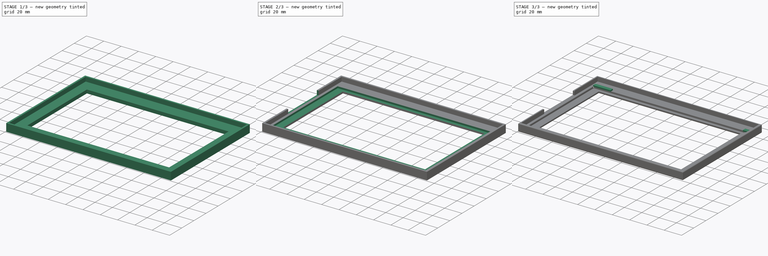
[diagram: build sequence overview — one tinted view per stage of 3, left to right]
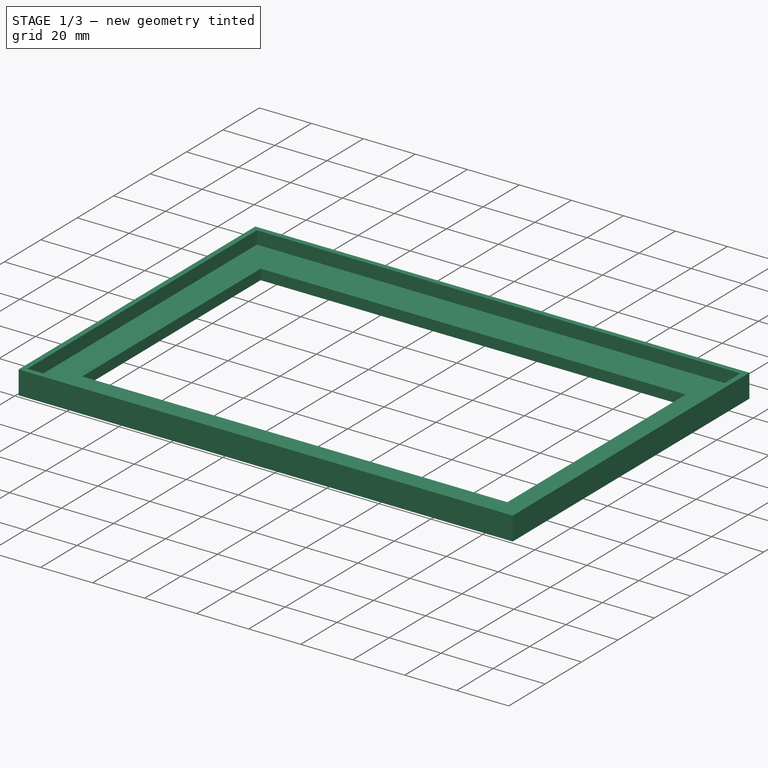
[diagram: stage 1 of 3 — iso view after this stage's code; geometry added in this stage tinted green]
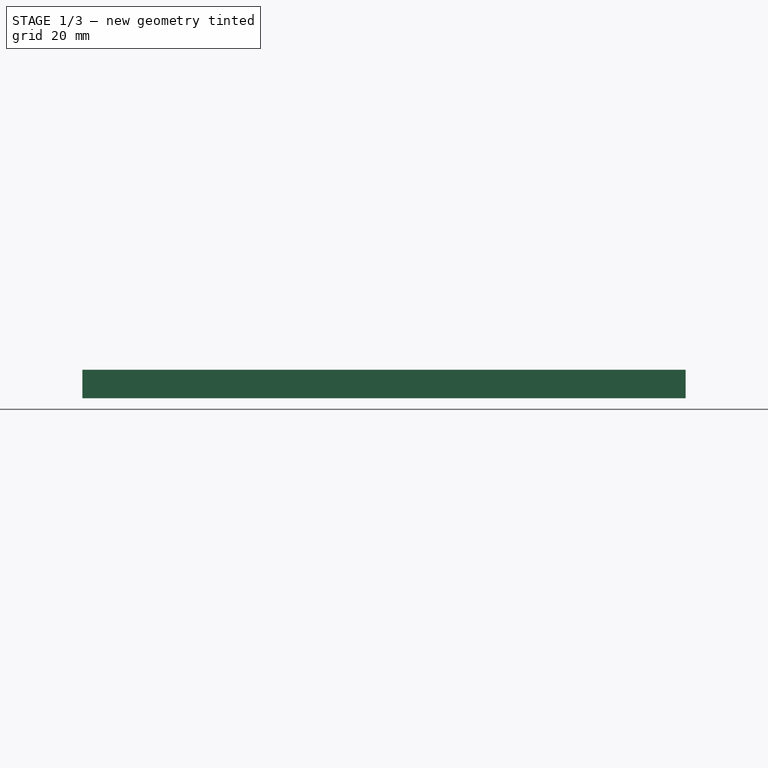
[diagram: stage 1 of 3 — front view after this stage's code; geometry added in this stage tinted green]
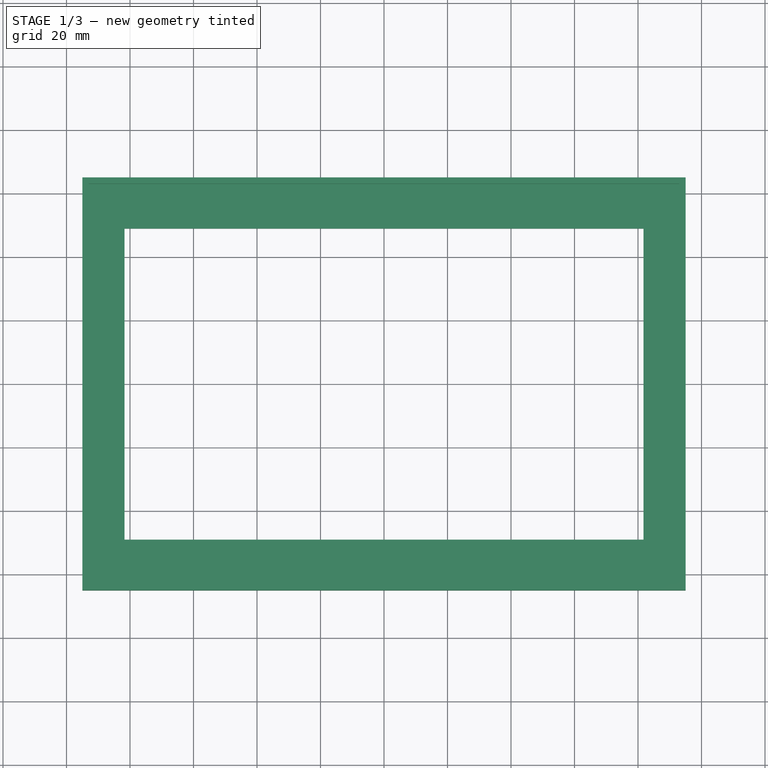
[diagram: stage 1 of 3 — top view after this stage's code; geometry added in this stage tinted green]
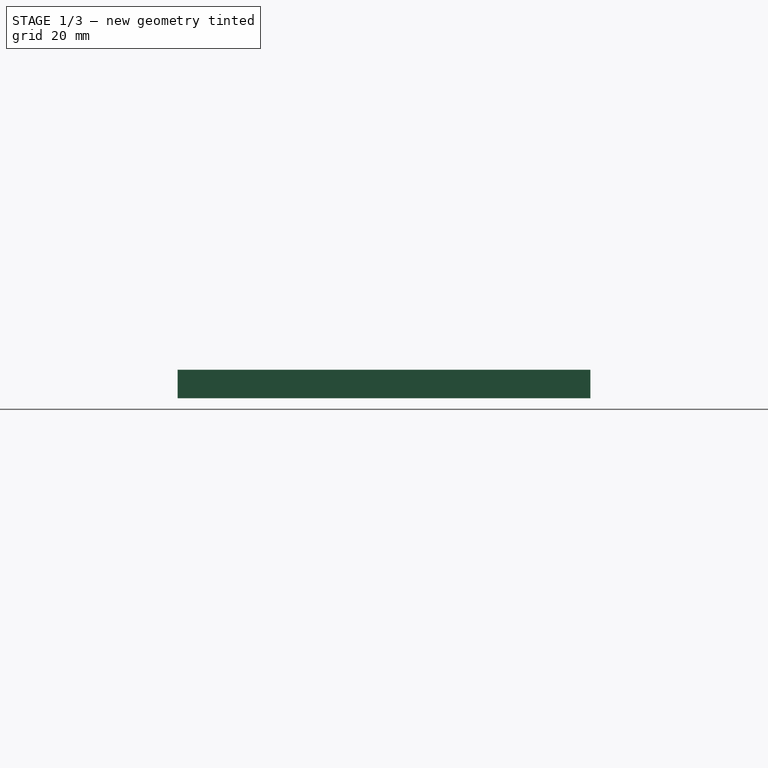
[diagram: stage 1 of 3 — right view after this stage's code; geometry added in this stage tinted green]
FCSTD DOCUMENT  (FreeCAD 1.0R39109 (Git))
Label: RevK75Bezel
License: All rights reserved
LicenseURL: https://en.wikipedia.org/wiki/All_rights_reserved
objects: Sketcher::SketchObject×5, PartDesign::Pad×3, PartDesign::Pocket×2, PartDesign::Plane×1, PartDesign::Fillet×1, PartDesign::Body×1
note: 30 computed .brp shape members not serialized (recipe doc carries the construction recipe); baked Part::Feature solids carry a one-line shape summary decoded from their .brp

FEATURE [PartDesign::Plane] DatumPlane
  AttachmentSupport = -> [XY_Plane]
  Length = 221.432
  MapMode = 5
  ResizeMode = 0
  Width = 161.432
FEATURE [Sketcher::SketchObject] Sketch  label="FrameBaseS"
  ArcFitTolerance = 0
  AttachmentOffset = pos=(0,0,-2) rot=(0,0,1;0rad)
  AttachmentSupport = -> [DatumPlane]
  FullyConstrained = true
  MakeInternals = false
  MapMode = 5
  Placement = pos=(0,0,-2) rot=(0,0,1;0rad)
  sketch-geometry (10):
    g0: LineSegment StartX=-95 StartY=-65 StartZ=0 EndX=-95 EndY=65 EndZ=0
    g1: LineSegment StartX=-95 StartY=65 StartZ=0 EndX=95 EndY=65 EndZ=0
    g2: LineSegment StartX=95 StartY=65 StartZ=0 EndX=95 EndY=-65 EndZ=0
    g3: LineSegment StartX=95 StartY=-65 StartZ=0 EndX=-95 EndY=-65 EndZ=0
    g4: GeomPoint [constr] X=0 Y=0 Z=0
    g5: LineSegment StartX=-81.75 StartY=-49 StartZ=0 EndX=-81.75 EndY=49 EndZ=0
    g6: LineSegment StartX=-81.75 StartY=49 StartZ=0 EndX=81.75 EndY=49 EndZ=0
    g7: LineSegment StartX=81.75 StartY=49 StartZ=0 EndX=81.75 EndY=-49 EndZ=0
    g8: LineSegment StartX=81.75 StartY=-49 StartZ=0 EndX=-81.75 EndY=-49 EndZ=0
    g9: GeomPoint [constr] X=0 Y=0 Z=0
  constraints (24):
    c: Coincident(g0,g1)
    c: Coincident(g1,g2)
    c: Coincident(g2,g3)
    c: Coincident(g3,g0)
    c: Horizontal(g1)
    c: Horizontal(g3)
    c: Vertical(g0)
    c: Vertical(g2)
    c: Symmetric(g1,g0,g4)
    c: Coincident(g4,g-1)
    c: DistanceY(g0,g0) = 130  'Frame Height'
    c: DistanceX(g1,g1) = 190  'Frame Width'
    c: Coincident(g5,g6)
    c: Coincident(g6,g7)
    c: Coincident(g7,g8)
    c: Coincident(g8,g5)
    c: Horizontal(g6)
    c: Horizontal(g8)
    c: Vertical(g5)
    c: Vertical(g7)
    c: Symmetric(g6,g5,g9)
    c: Coincident(g9,g4)
    c: DistanceX(g6,g6) = 163.5  'OpeningWidth'
    c: DistanceY(g5,g5) = 98  'OpeningHeight'
FEATURE [PartDesign::Pad] Pad  label="FrameBase"
  Direction = (0,0,1)
  Length = 4
  Length2 = 10
  Profile = -> Sketch
  ReferenceAxis = -> Sketch [N_Axis]
  Suppressed = false
  Type = 0
FEATURE [Sketcher::SketchObject] Sketch003  label="DisplayRecessS"
  ArcFitTolerance = 0
  AttachmentSupport = -> [Pad]
  FullyConstrained = true
  MakeInternals = false
  MapMode = 5
  Placement = pos=(0,0,2) rot=(0,0,1;0rad)
  sketch-geometry (9):
    g0: LineSegment StartX=-90 StartY=52.25 StartZ=0 EndX=-90 EndY=-59.75 EndZ=0
    g1: LineSegment StartX=86 StartY=-59.75 StartZ=0 EndX=86 EndY=52.25 EndZ=0
    g2: LineSegment StartX=86 StartY=52.25 StartZ=0 EndX=-90 EndY=52.25 EndZ=0
    g3: GeomPoint [constr] X=-2 Y=-3.75 Z=0
    g4: LineSegment StartX=20 StartY=-59.75 StartZ=0 EndX=86 EndY=-59.75 EndZ=0
    g5: LineSegment StartX=-90 StartY=-59.75 StartZ=0 EndX=-20 EndY=-59.75 EndZ=0
    g6: LineSegment StartX=-20 StartY=-59.75 StartZ=0 EndX=-20 EndY=-62.25 EndZ=0
    g7: LineSegment StartX=-20 StartY=-62.25 StartZ=0 EndX=20 EndY=-62.25 EndZ=0
    g8: LineSegment StartX=20 StartY=-62.25 StartZ=0 EndX=20 EndY=-59.75 EndZ=0
  constraints (25):
    c: Coincident(g0,g5)
    c: Coincident(g4,g1)
    c: Coincident(g1,g2)
    c: Coincident(g2,g0)
    c: Horizontal(g2)
    c: Vertical(g0)
    c: Vertical(g1)
    c: Symmetric(g4,g0,g3)
    c: DistanceX(g2,g2) = 176  'RecessWidth'
    c: DistanceY(g0,g0) = 112  'RecessHeight'
    c: DistanceX(g-1,g3) = -2  'RecessXOffset'
    c: DistanceY(g-1,g3) = -3.75  'RecessYOffset'
    c: Coincident(g8,g4)
    c: Horizontal(g4)
    c: Coincident(g5,g6)
    c: Horizontal(g5)
    c: DistanceX(g6,g8) = 40
    c: Distance(g5,g-2) = 20
    c: Coincident(g6,g7)
    c: Coincident(g7,g8)
    c: Horizontal(g7)
    c: Vertical(g6)
    c: Vertical(g8)
    c: DistanceY(g8,g8) = 2.5
    c: DistanceY(g4,g5) = 0
FEATURE [Sketcher::SketchObject] Sketch005  label="BorderS"
  ArcFitTolerance = 1e-06
  FullyConstrained = true
  MakeInternals = false
  MapMode = 5
  Placement = pos=(0,0,2) rot=(0,0,1;0rad)
  sketch-geometry (10):
    g0: LineSegment StartX=-95 StartY=65 StartZ=0 EndX=-95 EndY=-65 EndZ=0
    g1: LineSegment StartX=-95 StartY=-65 StartZ=0 EndX=95 EndY=-65 EndZ=0
    g2: LineSegment StartX=95 StartY=-65 StartZ=0 EndX=95 EndY=65 EndZ=0
    g3: LineSegment StartX=95 StartY=65 StartZ=0 EndX=-95 EndY=65 EndZ=0
    g4: GeomPoint [constr] X=0 Y=0 Z=0
    g5: LineSegment StartX=-93 StartY=63 StartZ=0 EndX=-93 EndY=-63 EndZ=0
    g6: LineSegment StartX=-93 StartY=-63 StartZ=0 EndX=93 EndY=-63 EndZ=0
    g7: LineSegment StartX=93 StartY=-63 StartZ=0 EndX=93 EndY=63 EndZ=0
    g8: LineSegment StartX=93 StartY=63 StartZ=0 EndX=-93 EndY=63 EndZ=0
    g9: GeomPoint [constr] X=0 Y=0 Z=0
  constraints (23):
    c: Coincident(g0,g1)
    c: Coincident(g1,g2)
    c: Coincident(g2,g3)
    c: Coincident(g3,g0)
    c: Vertical(g0)
    c: Vertical(g2)
    c: Horizontal(g1)
    c: Horizontal(g3)
    c: Symmetric(g2,g0,g4)
    c: Coincident(g4,g-1)
    c: Coincident(g5,g6)
    c: Coincident(g6,g7)
    c: Coincident(g7,g8)
    c: Coincident(g8,g5)
    c: Vertical(g5)
    c: Vertical(g7)
    c: Horizontal(g6)
    c: Horizontal(g8)
    c: Symmetric(g7,g5,g9)
    c: Coincident(g9,g4)
    c: Coincident(g2,g-4)
    c: DistanceX(g7,g2) = 2
    c: DistanceY(g7,g2) = 2
FEATURE [PartDesign::Pad] Pad002  label="Border"
  BaseFeature = -> Pad
  Direction = (0,0,1)
  Length = 5
  Length2 = 10
  Profile = -> Sketch005
  ReferenceAxis = -> Sketch005 [N_Axis]
  Refine = true
  Suppressed = false
  Type = 0
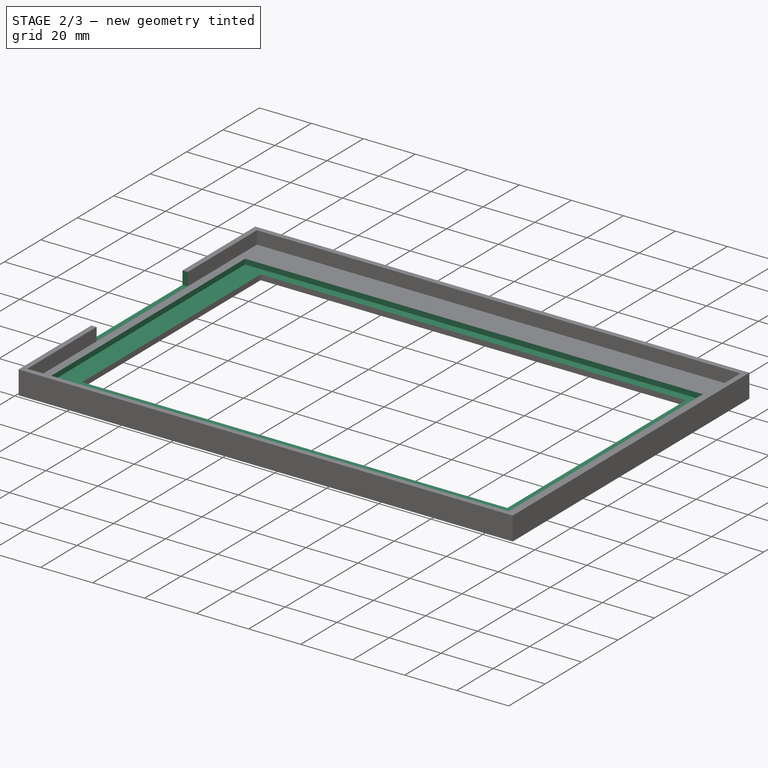
[diagram: stage 2 of 3 — iso view after this stage's code; geometry added in this stage tinted green]
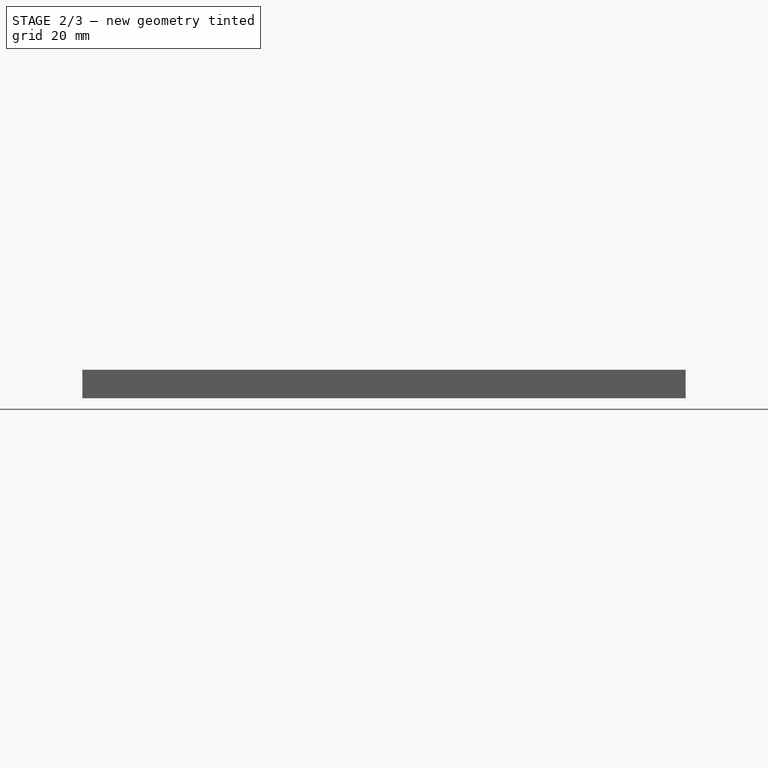
[diagram: stage 2 of 3 — front view after this stage's code; geometry added in this stage tinted green]
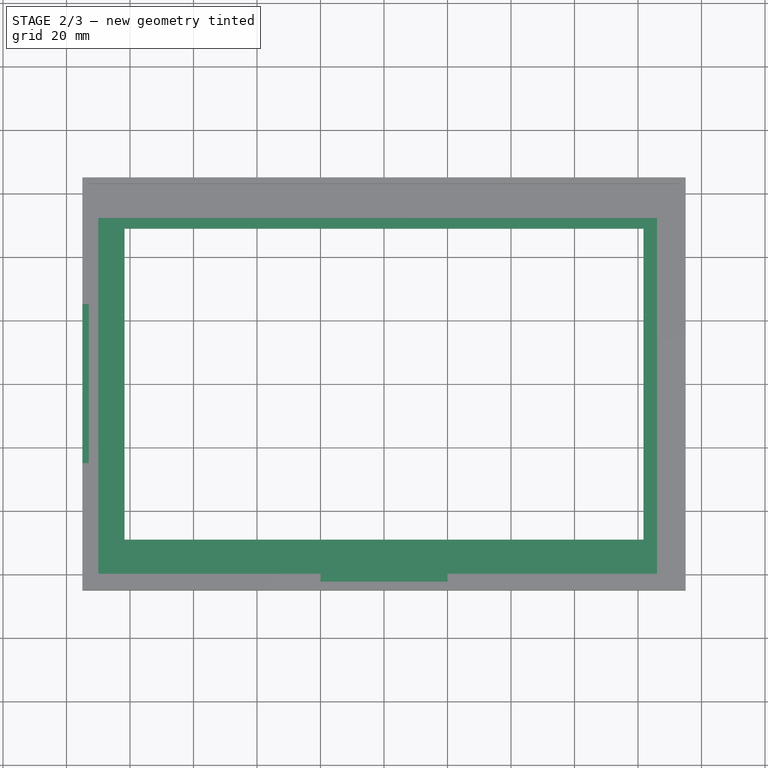
[diagram: stage 2 of 3 — top view after this stage's code; geometry added in this stage tinted green]
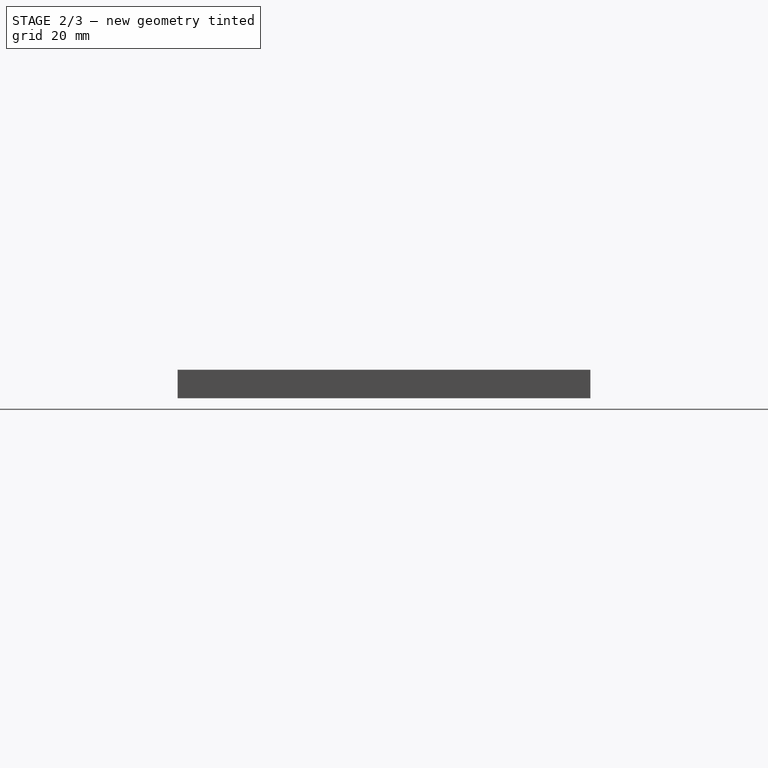
[diagram: stage 2 of 3 — right view after this stage's code; geometry added in this stage tinted green]
FEATURE [PartDesign::Pocket] Pocket  label="DisplayRecess"
  BaseFeature = -> Pad002
  Direction = (0,0,-1)
  Length = 2
  Length2 = 5
  Profile = -> Sketch003
  ReferenceAxis = -> Sketch003 [N_Axis]
  Refine = true
  Suppressed = false
  Type = 0
FEATURE [Sketcher::SketchObject] Sketch006  label="CableCutoutS"
  ArcFitTolerance = 1e-06
  AttachmentSupport = -> [Pocket]
  ExternalGeometry = -> [Pocket]
  FullyConstrained = true
  MakeInternals = false
  MapMode = 5
  Placement = pos=(-95,0,0) rot=(0.57735,-0.57735,-0.57735;2.0944rad)
  sketch-geometry (5):
    g0: LineSegment StartX=-25 StartY=7 StartZ=0 EndX=-25 EndY=2 EndZ=0
    g1: LineSegment StartX=-25 StartY=2 StartZ=0 EndX=25 EndY=2 EndZ=0
    g2: LineSegment StartX=25 StartY=2 StartZ=0 EndX=25 EndY=7 EndZ=0
    g3: LineSegment StartX=25 StartY=7 StartZ=0 EndX=-25 EndY=7 EndZ=0
    g4: GeomPoint [constr] X=-1e-16 Y=4.5 Z=0
  constraints (13):
    c: Coincident(g0,g1)
    c: Coincident(g1,g2)
    c: Coincident(g2,g3)
    c: Coincident(g3,g0)
    c: Vertical(g0)
    c: Vertical(g2)
    c: Horizontal(g1)
    c: Horizontal(g3)
    c: Symmetric(g2,g0,g4)
    c: PointOnObject(g4,g-2)
    c: Distance(g1,g1) = 50
    c: PointOnObject(g2,g-3)
    c: Distance(g2,g2) = 5
FEATURE [PartDesign::Pocket] Pocket001  label="CableCutout"
  BaseFeature = -> Pocket
  Direction = (1,0,0)
  Length = 5
  Length2 = 5
  Profile = -> Sketch006
  ReferenceAxis = -> Sketch006 [N_Axis]
  Refine = true
  Suppressed = false
  Type = 2
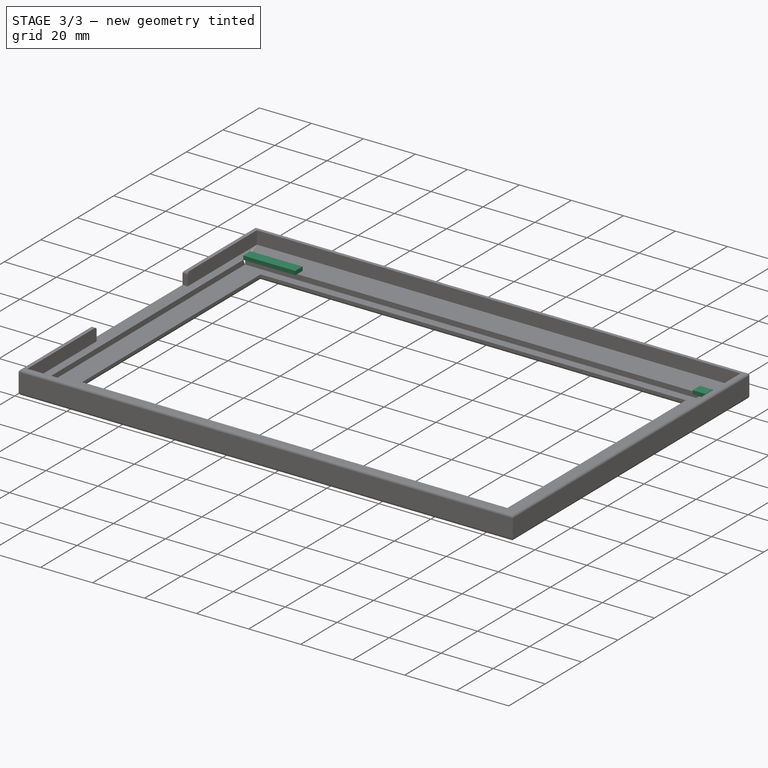
[diagram: stage 3 of 3 — iso view after this stage's code; geometry added in this stage tinted green]
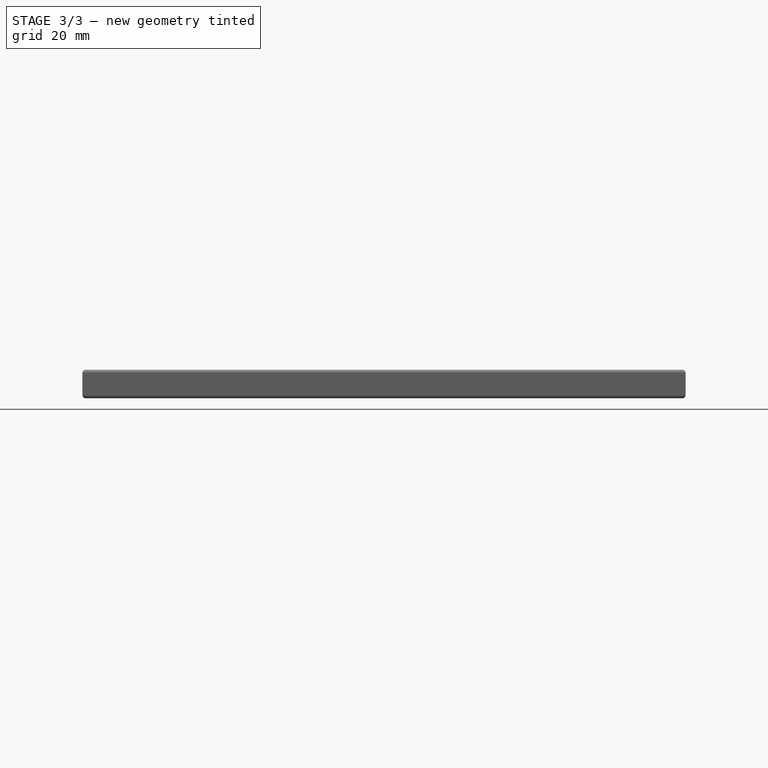
[diagram: stage 3 of 3 — front view after this stage's code; geometry added in this stage tinted green]
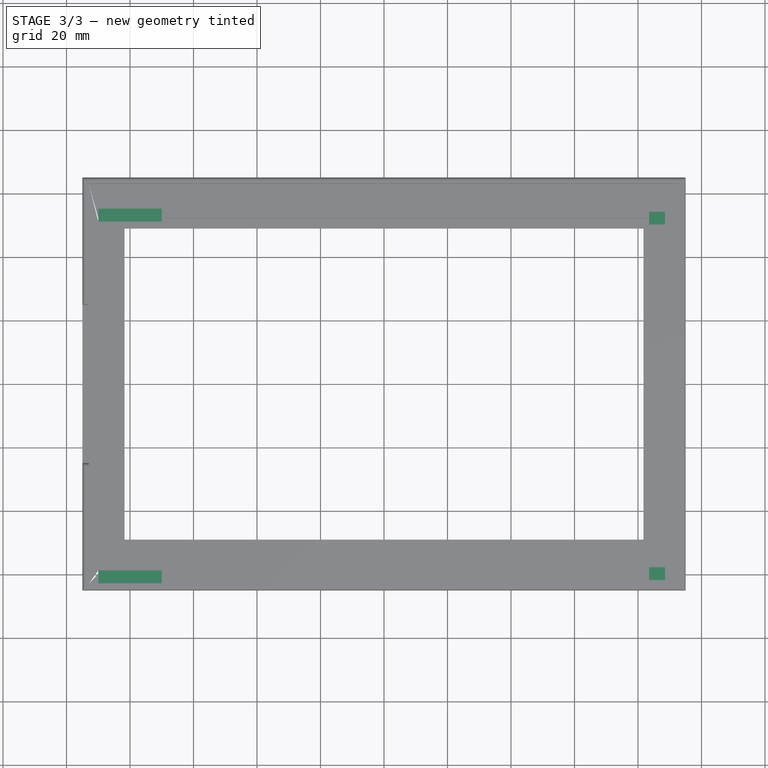
[diagram: stage 3 of 3 — top view after this stage's code; geometry added in this stage tinted green]
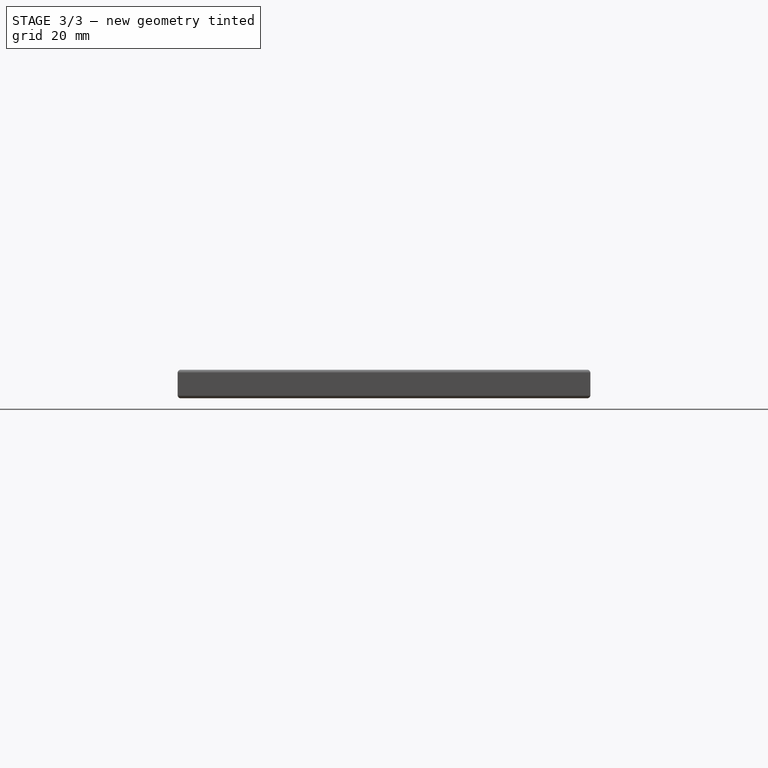
[diagram: stage 3 of 3 — right view after this stage's code; geometry added in this stage tinted green]
FEATURE [PartDesign::Fillet] Fillet
  Base = -> Pocket001 [Edge4,Edge3,Edge2,Edge8,Edge7,Edge5,Edge6,Edge1,Edge14,Edge20,Edge18,Edge16,Edge10,Edge35,Edge29]
  BaseFeature = -> Pocket001
  Radius = 1
  Refine = true
  SupportTransform = false
  Suppressed = false
  UseAllEdges = false
FEATURE [Sketcher::SketchObject] Sketch010  label="ClipsS"
  ArcFitTolerance = 1e-06
  AttachmentSupport = -> [Fillet]
  ExternalGeometry = -> [Fillet]
  FullyConstrained = true
  MakeInternals = false
  MapMode = 5
  Placement = pos=(0,0,2) rot=(0,0,1;0rad)
  sketch-geometry (18):
    g0: LineSegment StartX=-90 StartY=51.25 StartZ=0 EndX=-70 EndY=51.25 EndZ=0
    g1: LineSegment StartX=-70 StartY=51.25 StartZ=0 EndX=-70 EndY=55.25 EndZ=0
    g2: LineSegment StartX=-70 StartY=55.25 StartZ=0 EndX=-90 EndY=55.25 EndZ=0
    g3: LineSegment StartX=-70 StartY=-62.75 StartZ=0 EndX=-70 EndY=-58.75 EndZ=0
    g4: LineSegment StartX=-70 StartY=-58.75 StartZ=0 EndX=-90 EndY=-58.75 EndZ=0
    g5: LineSegment StartX=-90 StartY=-58.75 StartZ=0 EndX=-90 EndY=-62.75 EndZ=0
    g6: LineSegment StartX=-90 StartY=-62.75 StartZ=0 EndX=-70 EndY=-62.75 EndZ=0
    g7: LineSegment StartX=83.5 StartY=54.25 StartZ=0 EndX=83.5 EndY=50.25 EndZ=0
    g8: LineSegment StartX=83.5 StartY=50.25 StartZ=0 EndX=88.5 EndY=50.25 EndZ=0
    g9: LineSegment StartX=88.5 StartY=50.25 StartZ=0 EndX=88.5 EndY=54.25 EndZ=0
    g10: LineSegment StartX=88.5 StartY=54.25 StartZ=0 EndX=83.5 EndY=54.25 EndZ=0
    g11: GeomPoint [constr] X=86 Y=52.25 Z=0
    g12: LineSegment StartX=83.5 StartY=-57.75 StartZ=0 EndX=83.5 EndY=-61.75 EndZ=0
    g13: LineSegment StartX=83.5 StartY=-61.75 StartZ=0 EndX=88.5 EndY=-61.75 EndZ=0
    g14: LineSegment StartX=88.5 StartY=-61.75 StartZ=0 EndX=88.5 EndY=-57.75 EndZ=0
    g15: LineSegment StartX=88.5 StartY=-57.75 StartZ=0 EndX=83.5 EndY=-57.75 EndZ=0
    g16: GeomPoint [constr] X=86 Y=-59.75 Z=0
    g17: LineSegment StartX=-90 StartY=55.25 StartZ=0 EndX=-90 EndY=51.25 EndZ=0
  constraints (48):
    c: Coincident(g0,g1)
    c: Coincident(g1,g2)
    c: Vertical(g1)
    c: Horizontal(g0)
    c: Horizontal(g2)
    c: Coincident(g3,g4)
    c: Coincident(g4,g5)
    c: Coincident(g5,g6)
    c: Coincident(g6,g3)
    c: Vertical(g3)
    c: Vertical(g5)
    c: Horizontal(g4)
    c: Horizontal(g6)
    c: DistanceX(g2,g2) = 20
    c: DistanceX(g6,g6) = 20
    c: DistanceY(g0,g2) = 4
    c: DistanceY(g5,g5) = 4
    c: Distance(g1,g-2) = 70
    c: Distance(g0,g-3) = 1
    c: Distance(g3,g-2) = 70
    c: Distance(g3,g-4) = 1
    c: Coincident(g7,g8)
    c: Coincident(g8,g9)
    c: Coincident(g9,g10)
    c: Coincident(g10,g7)
    c: Vertical(g7)
    c: Vertical(g9)
    c: Horizontal(g8)
    c: Horizontal(g10)
    c: Symmetric(g9,g7,g11)
    c: Coincident(g11,g-3)
    c: DistanceX(g10,g10) = 5
    c: DistanceY(g9,g9) = 4
    c: Coincident(g12,g13)
    c: Coincident(g13,g14)
    c: Coincident(g14,g15)
    c: Coincident(g15,g12)
    c: Vertical(g12)
    c: Vertical(g14)
    c: Horizontal(g13)
    c: Horizontal(g15)
    c: Symmetric(g14,g12,g16)
    c: Coincident(g16,g-5)
    c: DistanceY(g14,g14) = 4
    c: DistanceX(g13,g13) = 5
    c: Vertical(g17)
    c: Coincident(g17,g0)
    c: Coincident(g17,g2)
FEATURE [PartDesign::Pad] Pad005  label="Clips"
  BaseFeature = -> Fillet
  Direction = (0,0,1)
  Length = 1.5
  Length2 = 10
  Profile = -> Sketch010
  ReferenceAxis = -> Sketch010 [N_Axis]
  Refine = true
  Suppressed = false
  Type = 0
FEATURE [PartDesign::Body] Body  label="FrameFront"
  AllowCompound = false
  Group = -> [DatumPlane,Sketch,Pad,Sketch003,Sketch005,Pad002,Pocket,Sketch006,Pocket001,Fillet,Sketch010,Pad005]
  Origin = -> Origin
  Tip = -> Pad005
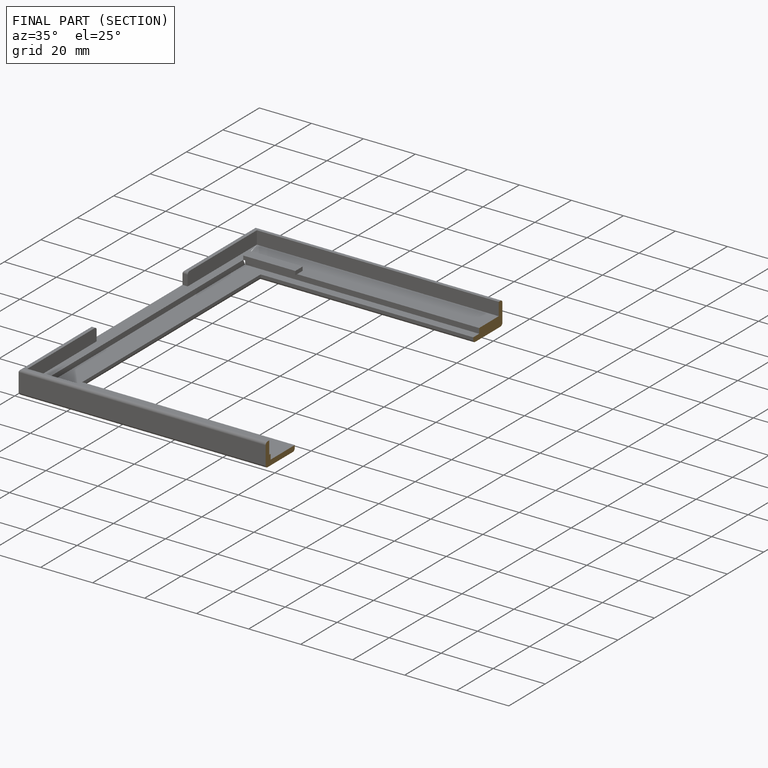
[diagram: finished part — half-section view (interior)]
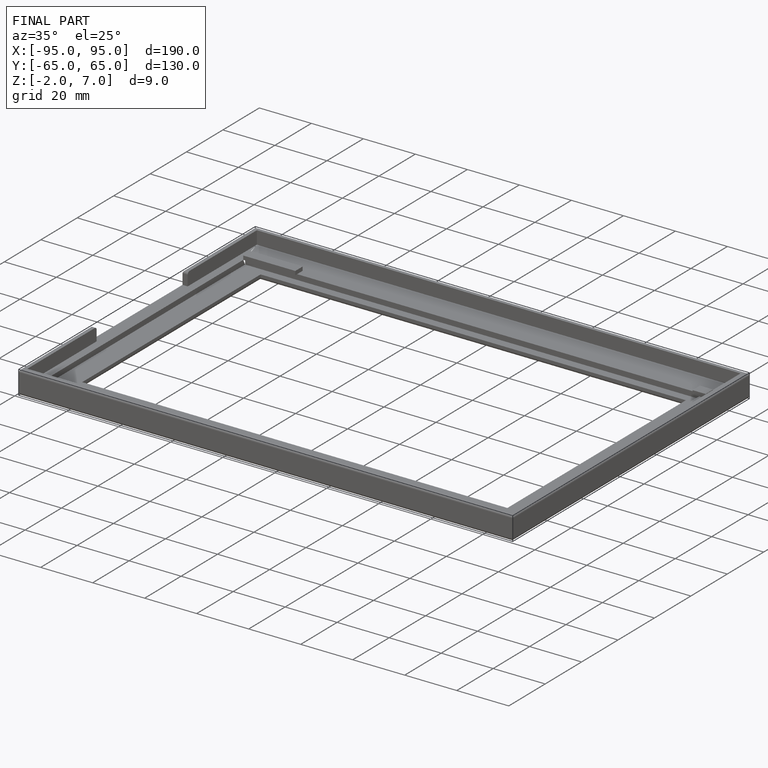
[diagram: finished part — iso view with bounding-box wireframe]
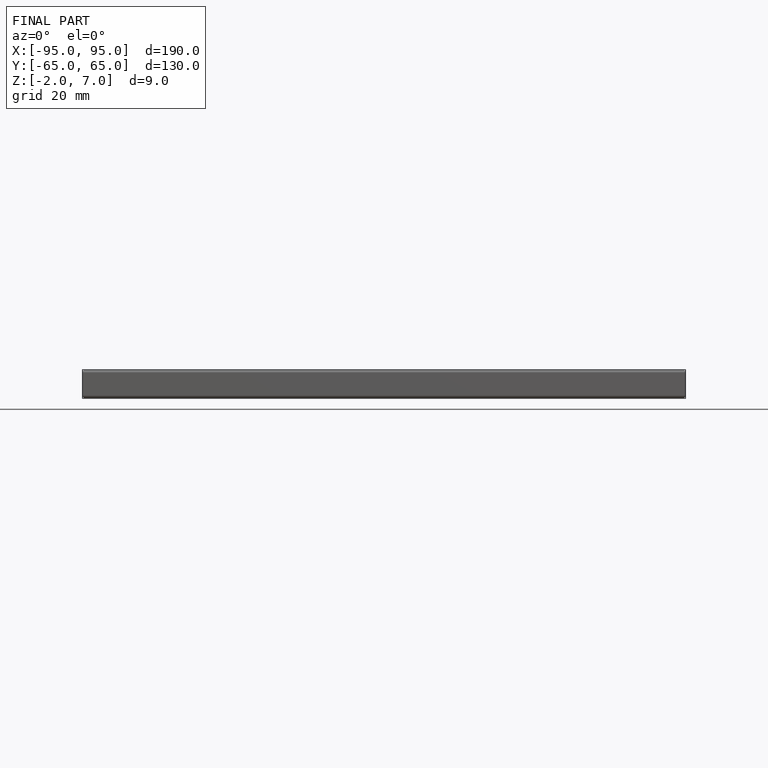
[diagram: finished part — front view with bounding-box wireframe]
